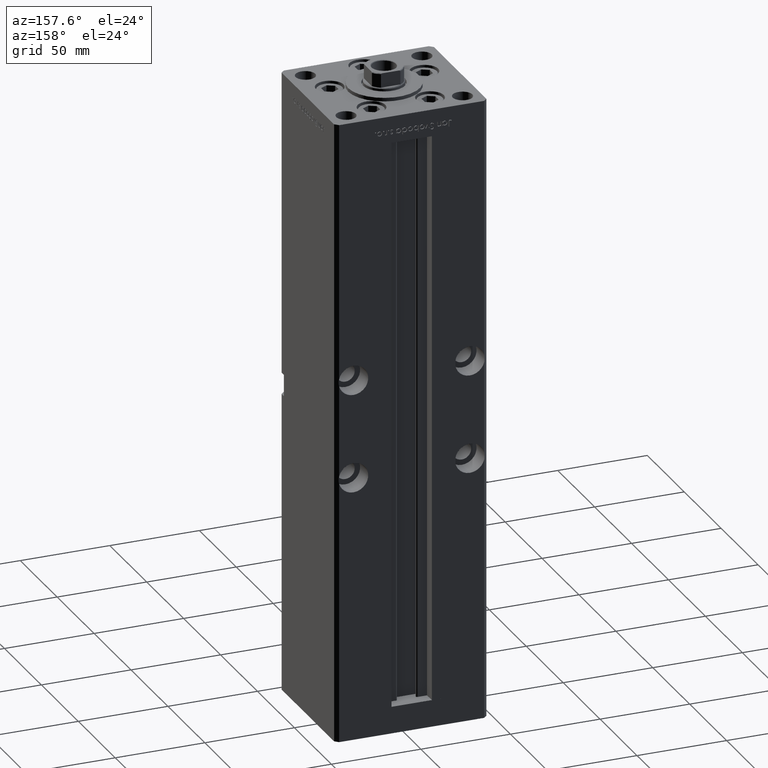
[diagram: clean part render]
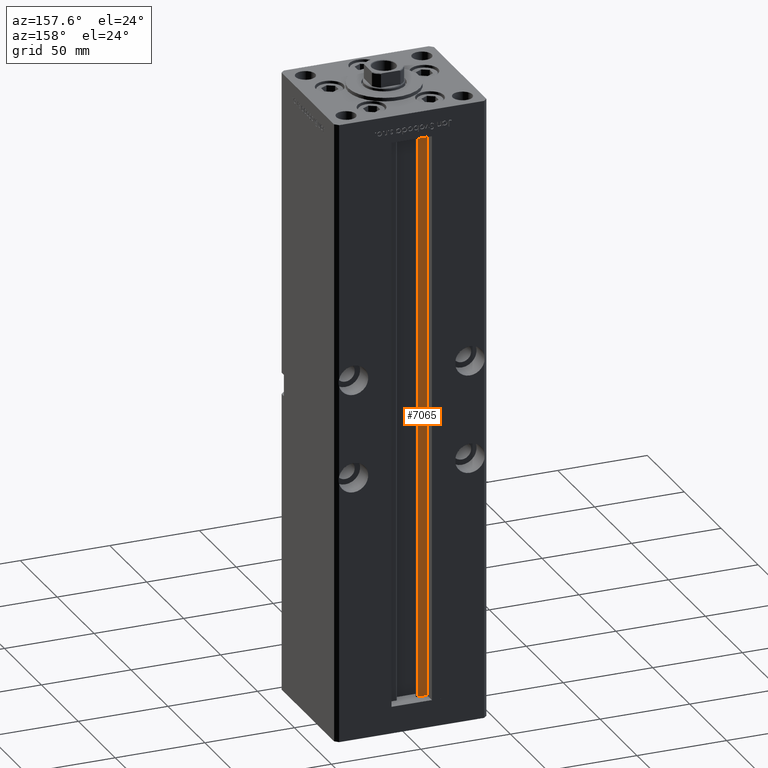
[diagram: same view with one face highlighted and labeled with its STEP entity id]
A machine part, auxiliary view. The second image highlights one B-rep face of the part: STEP entity #7065.
In plain terms, the highlighted planar face has unit normal (0, -1, 0).
Its self-contained STEP definition (entity closure, byte-faithful):
#1548 = VERTEX_POINT ( 'NONE', #5385 ) ;
#1632 = VERTEX_POINT ( 'NONE', #35452 ) ;
#2743 = DIRECTION ( 'NONE',  ( -1.000000000000000000, 0.000000000000000000, 0.000000000000000000 ) ) ;
#5385 = CARTESIAN_POINT ( 'NONE',  ( -11.24999999999999822, 31.00000000000000000, 0.000000000000000000 ) ) ;
#7065 = ADVANCED_FACE ( 'NONE', ( #41106 ), #42424, .F. ) ;
#8137 = CARTESIAN_POINT ( 'NONE',  ( -11.24999999999999822, 31.00000000000000000, 0.000000000000000000 ) ) ;
#8207 = VERTEX_POINT ( 'NONE', #48223 ) ;
#11601 = AXIS2_PLACEMENT_3D ( 'NONE', #21479, #26564, #34112 ) ;
#12556 = LINE ( 'NONE', #28964, #31481 ) ;
#15330 = CARTESIAN_POINT ( 'NONE',  ( -6.183333333333997928, 31.00000000000000000, 0.000000000000000000 ) ) ;
#16719 = EDGE_CURVE ( 'NONE', #17607, #8207, #12556, .T. ) ;
#17607 = VERTEX_POINT ( 'NONE', #15330 ) ;
#18093 = LINE ( 'NONE', #34230, #39894 ) ;
#19652 = CARTESIAN_POINT ( 'NONE',  ( 0.000000000000000000, 31.00000000000000000, 318.5000000000000000 ) ) ;
#20518 = DIRECTION ( 'NONE',  ( -0.000000000000000000, -0.000000000000000000, 1.000000000000000000 ) ) ;
#21479 = CARTESIAN_POINT ( 'NONE',  ( -6.183333333333997928, 31.00000000000000000, 0.000000000000000000 ) ) ;
#25561 = ORIENTED_EDGE ( 'NONE', *, *, #36019, .T. ) ;
#25955 = EDGE_LOOP ( 'NONE', ( #30302, #42856, #25561, #46440 ) ) ;
#26564 = DIRECTION ( 'NONE',  ( 0.000000000000000000, -1.000000000000000000, -0.000000000000000000 ) ) ;
#28964 = CARTESIAN_POINT ( 'NONE',  ( -6.183333333333997928, 31.00000000000000000, 0.000000000000000000 ) ) ;
#30302 = ORIENTED_EDGE ( 'NONE', *, *, #16719, .F. ) ;
#30733 = DIRECTION ( 'NONE',  ( 1.000000000000000000, -0.000000000000000000, -0.000000000000000000 ) ) ;
#31481 = VECTOR ( 'NONE', #36754, 1000.000000000000000 ) ;
#32189 = VECTOR ( 'NONE', #2743, 1000.000000000000000 ) ;
#34112 = DIRECTION ( 'NONE',  ( 0.000000000000000000, 0.000000000000000000, -1.000000000000000000 ) ) ;
#34230 = CARTESIAN_POINT ( 'NONE',  ( -6.183333333333997928, 31.00000000000000000, 0.000000000000000000 ) ) ;
#35452 = CARTESIAN_POINT ( 'NONE',  ( -11.24999999999999822, 31.00000000000000000, 318.5000000000000000 ) ) ;
#36019 = EDGE_CURVE ( 'NONE', #1548, #1632, #44961, .T. ) ;
#36754 = DIRECTION ( 'NONE',  ( -0.000000000000000000, -0.000000000000000000, 1.000000000000000000 ) ) ;
#38801 = VECTOR ( 'NONE', #20518, 1000.000000000000000 ) ;
#39019 = LINE ( 'NONE', #19652, #32189 ) ;
#39894 = VECTOR ( 'NONE', #30733, 1000.000000000000000 ) ;
#41106 = FACE_OUTER_BOUND ( 'NONE', #25955, .T. ) ;
#42424 = PLANE ( 'NONE',  #11601 ) ;
#42856 = ORIENTED_EDGE ( 'NONE', *, *, #44339, .F. ) ;
#44339 = EDGE_CURVE ( 'NONE', #1548, #17607, #18093, .T. ) ;
#44961 = LINE ( 'NONE', #8137, #38801 ) ;
#46440 = ORIENTED_EDGE ( 'NONE', *, *, #48762, .F. ) ;
#48223 = CARTESIAN_POINT ( 'NONE',  ( -6.183333333333997928, 31.00000000000000000, 318.5000000000000000 ) ) ;
#48762 = EDGE_CURVE ( 'NONE', #8207, #1632, #39019, .T. ) ;